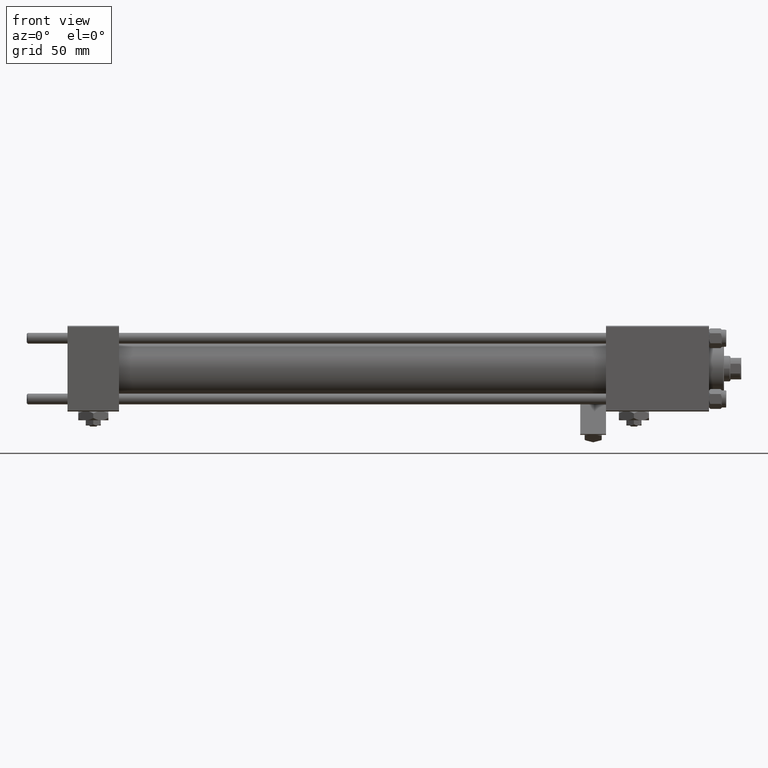
[diagram: clean part render]
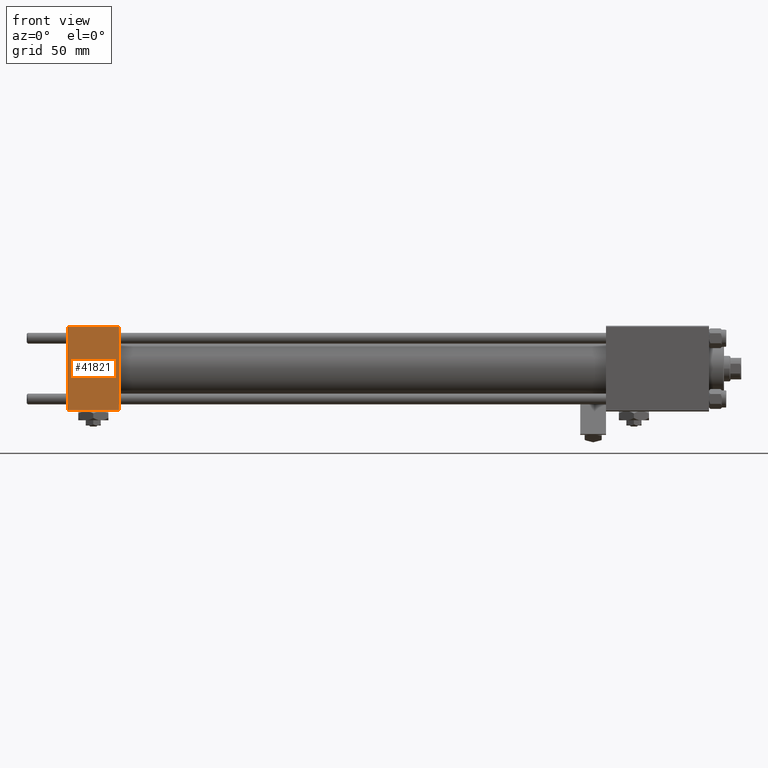
[diagram: same view with one face highlighted and labeled with its STEP entity id]
A machine part, front view. The second image highlights one B-rep face of the part: STEP entity #41821.
In plain terms, the highlighted planar face has unit normal (0, 1, 0).
Its self-contained STEP definition (entity closure, byte-faithful):
#264 = CARTESIAN_POINT ( 'NONE',  ( 0.000000000000000000, -20.00000000000000355, 19.49999999999998224 ) ) ;
#3666 = ORIENTED_EDGE ( 'NONE', *, *, #30669, .F. ) ;
#4181 = EDGE_CURVE ( 'NONE', #36719, #21925, #26963, .T. ) ;
#4865 = LINE ( 'NONE', #29967, #34364 ) ;
#5169 = DIRECTION ( 'NONE',  ( -0.000000000000000000, 1.000000000000000000, 8.673617379884036705E-17 ) ) ;
#5439 = PLANE ( 'NONE',  #42278 ) ;
#7493 = VECTOR ( 'NONE', #42709, 1000.000000000000000 ) ;
#7825 = ORIENTED_EDGE ( 'NONE', *, *, #35493, .T. ) ;
#9433 = FACE_OUTER_BOUND ( 'NONE', #24524, .T. ) ;
#11130 = EDGE_CURVE ( 'NONE', #35879, #36719, #30025, .T. ) ;
#14836 = LINE ( 'NONE', #23635, #20651 ) ;
#18231 = CARTESIAN_POINT ( 'NONE',  ( 24.00000000000000000, -20.00000000000000355, 19.99999999999998934 ) ) ;
#20651 = VECTOR ( 'NONE', #43394, 1000.000000000000000 ) ;
#21925 = VERTEX_POINT ( 'NONE', #34045 ) ;
#23227 = ORIENTED_EDGE ( 'NONE', *, *, #4181, .T. ) ;
#23635 = CARTESIAN_POINT ( 'NONE',  ( 24.00000000000000000, -20.00000000000000355, 19.99999999999998934 ) ) ;
#24524 = EDGE_LOOP ( 'NONE', ( #36203, #23227, #3666, #7825 ) ) ;
#25412 = CARTESIAN_POINT ( 'NONE',  ( 0.000000000000000000, -20.00000000000000000, -19.49999999999999645 ) ) ;
#26963 = LINE ( 'NONE', #42451, #7493 ) ;
#29967 = CARTESIAN_POINT ( 'NONE',  ( 24.00000000000000000, -20.00000000000000355, 19.49999999999998224 ) ) ;
#30025 = LINE ( 'NONE', #39086, #35903 ) ;
#30669 = EDGE_CURVE ( 'NONE', #43990, #21925, #14836, .T. ) ;
#34045 = CARTESIAN_POINT ( 'NONE',  ( 24.00000000000000000, -20.00000000000000000, -19.49999999999999645 ) ) ;
#34296 = DIRECTION ( 'NONE',  ( 0.000000000000000000, 8.673617379884036705E-17, -1.000000000000000000 ) ) ;
#34364 = VECTOR ( 'NONE', #46235, 1000.000000000000000 ) ;
#35493 = EDGE_CURVE ( 'NONE', #43990, #35879, #4865, .T. ) ;
#35879 = VERTEX_POINT ( 'NONE', #264 ) ;
#35903 = VECTOR ( 'NONE', #34296, 1000.000000000000000 ) ;
#36203 = ORIENTED_EDGE ( 'NONE', *, *, #11130, .T. ) ;
#36719 = VERTEX_POINT ( 'NONE', #25412 ) ;
#38535 = DIRECTION ( 'NONE',  ( 0.000000000000000000, -8.673617379884036705E-17, 1.000000000000000000 ) ) ;
#39086 = CARTESIAN_POINT ( 'NONE',  ( 0.000000000000000000, -20.00000000000000355, 19.99999999999998934 ) ) ;
#41821 = ADVANCED_FACE ( 'NONE', ( #9433 ), #5439, .F. ) ;
#42278 = AXIS2_PLACEMENT_3D ( 'NONE', #18231, #5169, #38535 ) ;
#42451 = CARTESIAN_POINT ( 'NONE',  ( 24.00000000000000000, -20.00000000000000000, -19.49999999999999645 ) ) ;
#42709 = DIRECTION ( 'NONE',  ( 1.000000000000000000, 0.000000000000000000, 0.000000000000000000 ) ) ;
#42892 = CARTESIAN_POINT ( 'NONE',  ( 24.00000000000000000, -20.00000000000000355, 19.49999999999998224 ) ) ;
#43394 = DIRECTION ( 'NONE',  ( 0.000000000000000000, 8.673617379884036705E-17, -1.000000000000000000 ) ) ;
#43990 = VERTEX_POINT ( 'NONE', #42892 ) ;
#46235 = DIRECTION ( 'NONE',  ( -1.000000000000000000, 0.000000000000000000, 0.000000000000000000 ) ) ;